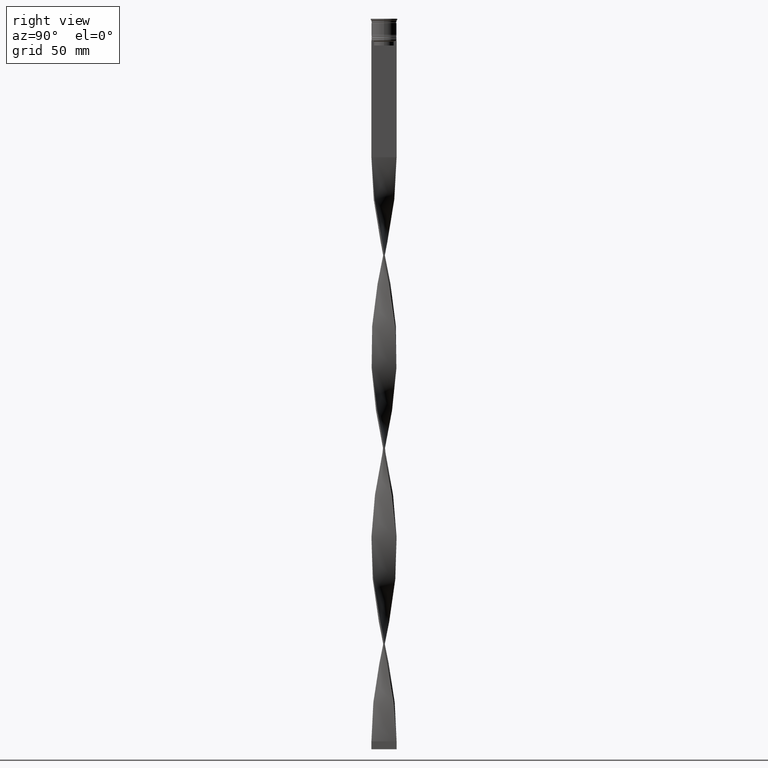
[diagram: clean part render]
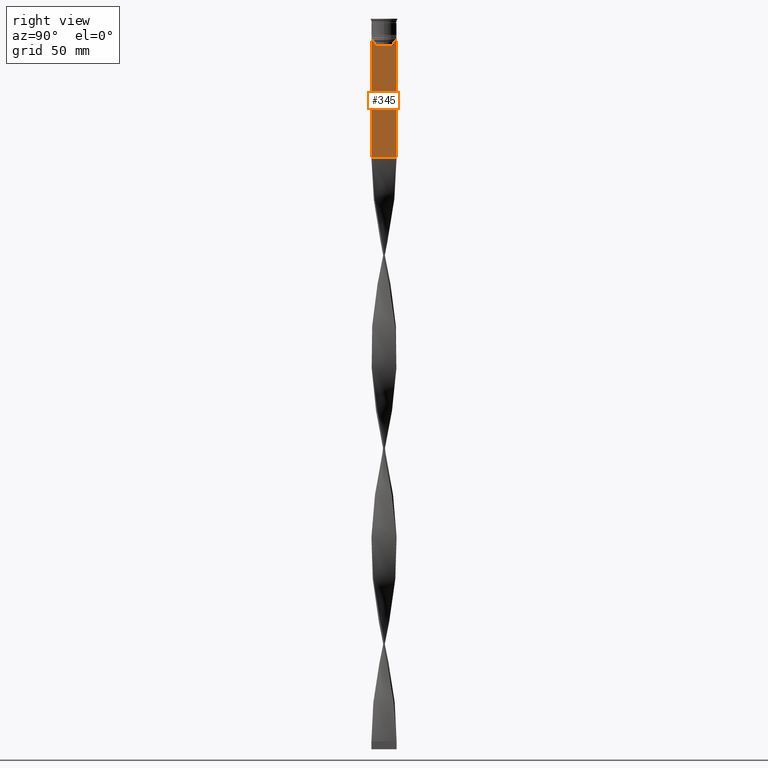
[diagram: same view with one face highlighted and labeled with its STEP entity id]
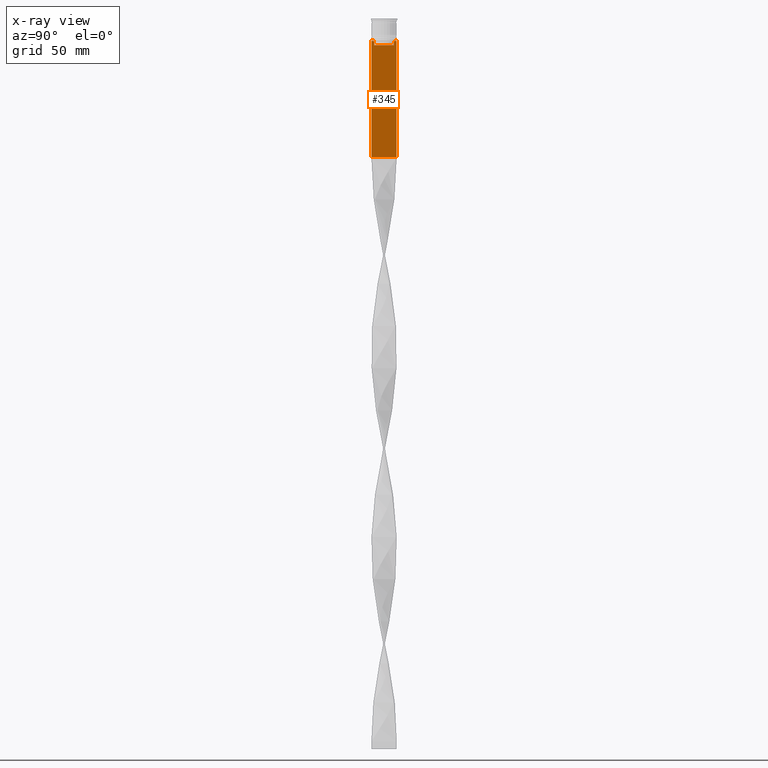
[diagram: x-ray of the same camera — body ghosted, the highlighted face saturated]
A machine part, right view. The second image highlights one B-rep face of the part: STEP entity #345.
The next image is the same camera in x-ray: the body ghosted, the highlighted face saturated — about 0% of this face is hidden behind the body in this view.
In plain terms, the highlighted planar face has unit normal (-1, 0, 0).
Its self-contained STEP definition (entity closure, byte-faithful):
#149 = VERTEX_POINT ( 'NONE', #3192 ) ;
#186 = EDGE_CURVE ( 'NONE', #1188, #536, #1146, .T. ) ;
#195 = CARTESIAN_POINT ( 'NONE',  ( 0.5000000000000001110, 7.884161337770806632, -14.00000000000000178 ) ) ;
#205 = VERTEX_POINT ( 'NONE', #2141 ) ;
#207 = CARTESIAN_POINT ( 'NONE',  ( 0.5000000000000001110, 6.380438856379708312, -17.00000000000000000 ) ) ;
#345 = ADVANCED_FACE ( 'NONE', ( #628 ), #671, .F. ) ;
#453 = CARTESIAN_POINT ( 'NONE',  ( 0.5000000000000001110, 6.399999999999999467, -17.00000000000000000 ) ) ;
#529 = DIRECTION ( 'NONE',  ( 0.000000000000000000, 0.000000000000000000, -1.000000000000000000 ) ) ;
#536 = VERTEX_POINT ( 'NONE', #4087 ) ;
#548 = CARTESIAN_POINT ( 'NONE',  ( 0.5000000000000001110, -6.547597841511247019, -14.33335192438652150 ) ) ;
#628 = FACE_OUTER_BOUND ( 'NONE', #2938, .T. ) ;
#671 = PLANE ( 'NONE',  #1058 ) ;
#729 = VECTOR ( 'NONE', #3520, 1000.000000000000000 ) ;
#758 = ORIENTED_EDGE ( 'NONE', *, *, #4027, .T. ) ;
#802 = ORIENTED_EDGE ( 'NONE', *, *, #186, .T. ) ;
#816 = DIRECTION ( 'NONE',  ( 0.000000000000000000, -1.000000000000000000, 0.000000000000000000 ) ) ;
#826 = CARTESIAN_POINT ( 'NONE',  ( 0.5000000000000001110, 6.380438856379708312, -14.50000000000000000 ) ) ;
#861 = CARTESIAN_POINT ( 'NONE',  ( 0.5000000000000001110, -8.000000000000003553, -14.00000000000000178 ) ) ;
#871 = VECTOR ( 'NONE', #3892, 1000.000000000000000 ) ;
#945 = LINE ( 'NONE', #3979, #871 ) ;
#985 = LINE ( 'NONE', #3911, #3648 ) ;
#988 = VERTEX_POINT ( 'NONE', #3973 ) ;
#1058 = AXIS2_PLACEMENT_3D ( 'NONE', #4038, #3313, #3999 ) ;
#1072 = ORIENTED_EDGE ( 'NONE', *, *, #3404, .T. ) ;
#1084 = EDGE_CURVE ( 'NONE', #536, #2038, #1317, .T. ) ;
#1146 = LINE ( 'NONE', #2948, #1200 ) ;
#1156 = CARTESIAN_POINT ( 'NONE',  ( 0.5000000000000001110, 6.714736947114692711, -14.16668390704818847 ) ) ;
#1188 = VERTEX_POINT ( 'NONE', #2582 ) ;
#1200 = VECTOR ( 'NONE', #529, 1000.000000000000000 ) ;
#1237 = ORIENTED_EDGE ( 'NONE', *, *, #2608, .T. ) ;
#1238 = LINE ( 'NONE', #4191, #4222 ) ;
#1314 = CARTESIAN_POINT ( 'NONE',  ( 0.5000000000000001110, 7.999999999999996447, 2.031219541881394530 ) ) ;
#1316 = EDGE_CURVE ( 'NONE', #2001, #1188, #2371, .T. ) ;
#1317 = LINE ( 'NONE', #4011, #2875 ) ;
#1338 = ORIENTED_EDGE ( 'NONE', *, *, #2595, .T. ) ;
#1432 = CARTESIAN_POINT ( 'NONE',  ( 0.5000000000000001110, 6.380438856379708312, -14.50000000000000000 ) ) ;
#1481 = ORIENTED_EDGE ( 'NONE', *, *, #3208, .T. ) ;
#1483 = VECTOR ( 'NONE', #816, 1000.000000000000000 ) ;
#1554 = CARTESIAN_POINT ( 'NONE',  ( 0.5000000000000001110, -6.380438856379708312, -14.50000000000000000 ) ) ;
#1638 = LINE ( 'NONE', #1314, #4139 ) ;
#1665 = EDGE_CURVE ( 'NONE', #4111, #988, #4115, .T. ) ;
#1892 = LINE ( 'NONE', #3958, #2330 ) ;
#1934 = EDGE_CURVE ( 'NONE', #205, #2038, #1638, .T. ) ;
#2001 = VERTEX_POINT ( 'NONE', #3275 ) ;
#2038 = VERTEX_POINT ( 'NONE', #3751 ) ;
#2136 = LINE ( 'NONE', #453, #1483 ) ;
#2141 = CARTESIAN_POINT ( 'NONE',  ( 0.5000000000000001110, 7.999999999999996447, -14.00000000000000178 ) ) ;
#2148 = ORIENTED_EDGE ( 'NONE', *, *, #2304, .T. ) ;
#2200 = ORIENTED_EDGE ( 'NONE', *, *, #1934, .F. ) ;
#2281 = DIRECTION ( 'NONE',  ( 0.000000000000000000, 0.000000000000000000, -1.000000000000000000 ) ) ;
#2304 = EDGE_CURVE ( 'NONE', #2853, #149, #2136, .T. ) ;
#2330 = VECTOR ( 'NONE', #3225, 1000.000000000000000 ) ;
#2371 = LINE ( 'NONE', #3781, #3858 ) ;
#2438 = CARTESIAN_POINT ( 'NONE',  ( 0.5000000000000001110, 6.547597841304911626, -14.33335192459222718 ) ) ;
#2582 = CARTESIAN_POINT ( 'NONE',  ( 0.5000000000000001110, -8.000000000000003553, -14.00000000000000178 ) ) ;
#2595 = EDGE_CURVE ( 'NONE', #4242, #3607, #985, .T. ) ;
#2608 = EDGE_CURVE ( 'NONE', #149, #4111, #1892, .T. ) ;
#2707 = ORIENTED_EDGE ( 'NONE', *, *, #2727, .T. ) ;
#2714 = DIRECTION ( 'NONE',  ( 0.000000000000000000, -1.000000000000000000, 0.000000000000000000 ) ) ;
#2727 = EDGE_CURVE ( 'NONE', #205, #4242, #945, .T. ) ;
#2853 = VERTEX_POINT ( 'NONE', #207 ) ;
#2875 = VECTOR ( 'NONE', #3322, 1000.000000000000000 ) ;
#2938 = EDGE_LOOP ( 'NONE', ( #1338, #1481, #1072, #2148, #1237, #3355, #758, #4280, #802, #4221, #2200, #2707 ) ) ;
#2948 = CARTESIAN_POINT ( 'NONE',  ( 0.5000000000000001110, -8.000000000000003553, 2.031219541881394530 ) ) ;
#3161 = VERTEX_POINT ( 'NONE', #1432 ) ;
#3192 = CARTESIAN_POINT ( 'NONE',  ( 0.5000000000000001110, -6.380438856379708312, -17.00000000000000000 ) ) ;
#3208 = EDGE_CURVE ( 'NONE', #3607, #3161, #3255, .T. ) ;
#3225 = DIRECTION ( 'NONE',  ( -0.000000000000000000, -0.000000000000000000, 1.000000000000000000 ) ) ;
#3255 = B_SPLINE_CURVE_WITH_KNOTS ( 'NONE', 3,
 ( #3761, #1156, #2438, #826 ),
 .UNSPECIFIED., .F., .F.,
 ( 4, 4 ),
 ( 0.01172465562756038263, 0.01243276816391822651 ),
 .UNSPECIFIED. ) ;
#3268 = DIRECTION ( 'NONE',  ( 0.000000000000000000, -1.000000000000000000, 0.000000000000000000 ) ) ;
#3270 = CARTESIAN_POINT ( 'NONE',  ( 0.5000000000000001110, -6.380438856379708312, -14.50000000000000000 ) ) ;
#3275 = CARTESIAN_POINT ( 'NONE',  ( 0.5000000000000001110, -7.884161337770806632, -14.00000000000000178 ) ) ;
#3313 = DIRECTION ( 'NONE',  ( -1.000000000000000000, 0.000000000000000000, 0.000000000000000000 ) ) ;
#3322 = DIRECTION ( 'NONE',  ( 0.000000000000000000, 1.000000000000000000, 0.000000000000000000 ) ) ;
#3355 = ORIENTED_EDGE ( 'NONE', *, *, #1665, .T. ) ;
#3404 = EDGE_CURVE ( 'NONE', #3161, #2853, #1238, .T. ) ;
#3520 = DIRECTION ( 'NONE',  ( 0.000000000000000000, -1.000000000000000000, 0.000000000000000000 ) ) ;
#3546 = CARTESIAN_POINT ( 'NONE',  ( 0.5000000000000001110, -6.881860213634098500, -14.00000000000000178 ) ) ;
#3572 = DIRECTION ( 'NONE',  ( 0.000000000000000000, 0.000000000000000000, -1.000000000000000000 ) ) ;
#3607 = VERTEX_POINT ( 'NONE', #4094 ) ;
#3648 = VECTOR ( 'NONE', #3268, 1000.000000000000000 ) ;
#3751 = CARTESIAN_POINT ( 'NONE',  ( 0.5000000000000001110, 7.999999999999996447, -88.00000000000000000 ) ) ;
#3761 = CARTESIAN_POINT ( 'NONE',  ( 0.5000000000000001110, 6.881860213634098500, -14.00000000000000178 ) ) ;
#3781 = CARTESIAN_POINT ( 'NONE',  ( 0.5000000000000001110, -8.000000000000003553, -14.00000000000000178 ) ) ;
#3858 = VECTOR ( 'NONE', #2714, 1000.000000000000000 ) ;
#3892 = DIRECTION ( 'NONE',  ( 0.000000000000000000, -1.000000000000000000, 0.000000000000000000 ) ) ;
#3911 = CARTESIAN_POINT ( 'NONE',  ( 0.5000000000000001110, -8.000000000000003553, -14.00000000000000178 ) ) ;
#3958 = CARTESIAN_POINT ( 'NONE',  ( 0.5000000000000001110, -6.380438856379708312, 0.000000000000000000 ) ) ;
#3973 = CARTESIAN_POINT ( 'NONE',  ( 0.5000000000000001110, -6.881860213634098500, -14.00000000000000178 ) ) ;
#3979 = CARTESIAN_POINT ( 'NONE',  ( 0.5000000000000001110, -8.000000000000003553, -14.00000000000000178 ) ) ;
#3999 = DIRECTION ( 'NONE',  ( 0.000000000000000000, 0.000000000000000000, 1.000000000000000000 ) ) ;
#4011 = CARTESIAN_POINT ( 'NONE',  ( 0.5000000000000001110, -8.000000000000003553, -88.00000000000000000 ) ) ;
#4027 = EDGE_CURVE ( 'NONE', #988, #2001, #4160, .T. ) ;
#4038 = CARTESIAN_POINT ( 'NONE',  ( 0.5000000000000001110, -8.000000000000003553, 2.031219541881394530 ) ) ;
#4087 = CARTESIAN_POINT ( 'NONE',  ( 0.5000000000000001110, -8.000000000000003553, -88.00000000000000000 ) ) ;
#4094 = CARTESIAN_POINT ( 'NONE',  ( 0.5000000000000001110, 6.881860213634098500, -14.00000000000000178 ) ) ;
#4111 = VERTEX_POINT ( 'NONE', #3270 ) ;
#4115 = B_SPLINE_CURVE_WITH_KNOTS ( 'NONE', 3,
 ( #1554, #548, #4205, #3546 ),
 .UNSPECIFIED., .F., .F.,
 ( 4, 4 ),
 ( 0.02996184199614751464, 0.03067452609193705923 ),
 .UNSPECIFIED. ) ;
#4139 = VECTOR ( 'NONE', #2281, 1000.000000000000000 ) ;
#4160 = LINE ( 'NONE', #861, #729 ) ;
#4191 = CARTESIAN_POINT ( 'NONE',  ( 0.5000000000000001110, 6.380438856379708312, 0.000000000000000000 ) ) ;
#4205 = CARTESIAN_POINT ( 'NONE',  ( 0.5000000000000001110, -6.714736947305993908, -14.16668390685738821 ) ) ;
#4221 = ORIENTED_EDGE ( 'NONE', *, *, #1084, .T. ) ;
#4222 = VECTOR ( 'NONE', #3572, 1000.000000000000000 ) ;
#4242 = VERTEX_POINT ( 'NONE', #195 ) ;
#4280 = ORIENTED_EDGE ( 'NONE', *, *, #1316, .T. ) ;